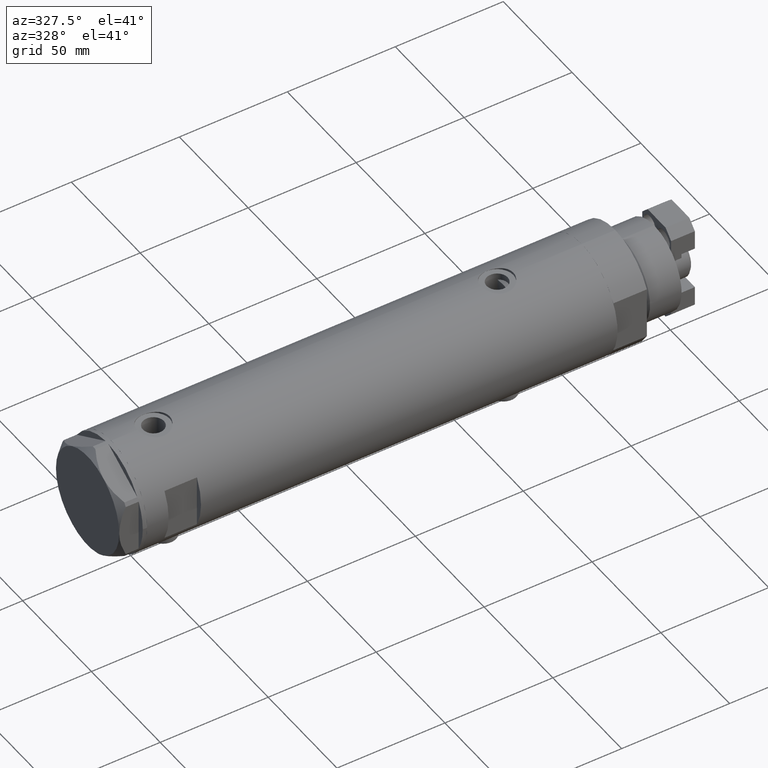
[diagram: clean part render]
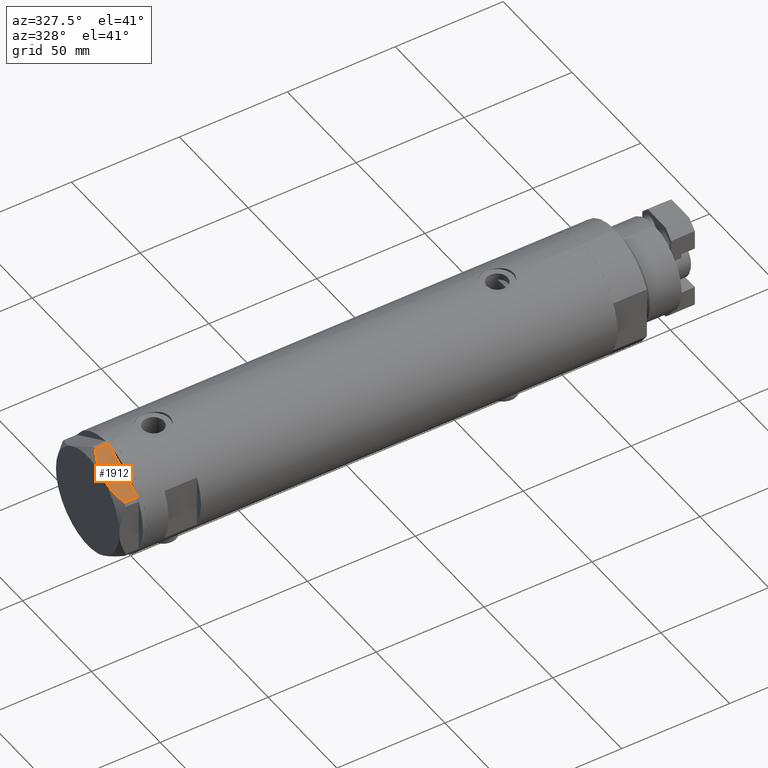
[diagram: same view with one face highlighted and labeled with its STEP entity id]
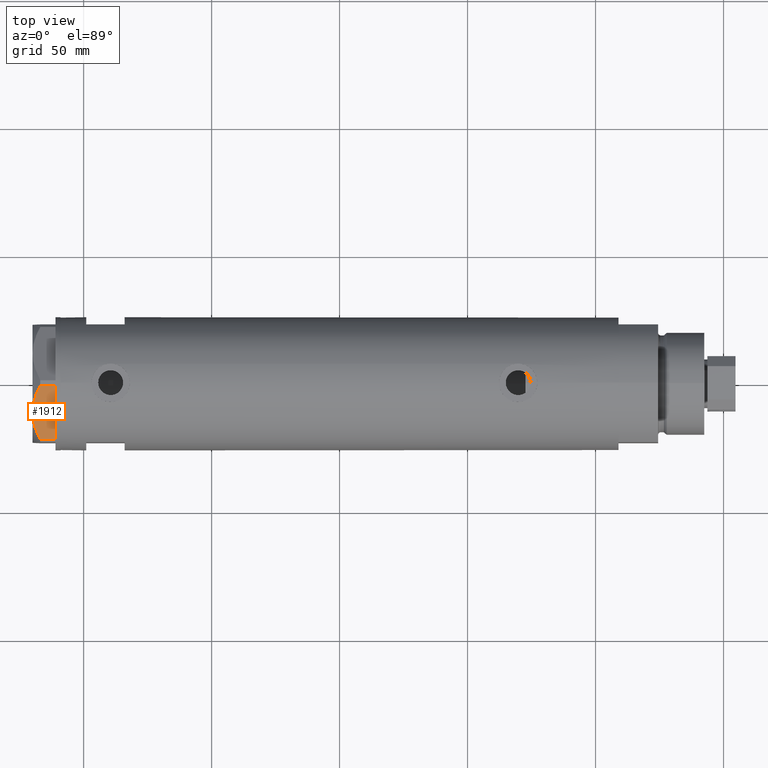
[diagram: same view with one face highlighted and labeled with its STEP entity id]
A machine part, auxiliary view. The second image highlights one B-rep face of the part: STEP entity #1912.
A second angle (top view) of the same face is appended — the face is thin or edge-on in the first view.
In plain terms, the highlighted planar face has unit normal (-0, 0.5, -0.866).
Its self-contained STEP definition (entity closure, byte-faithful):
#37 = CARTESIAN_POINT ( 'NONE',  ( -13.34348161667001698, -18.85424967941148822, 8.907842277728438063 ) ) ;
#99 = LINE ( 'NONE', #4350, #3338 ) ;
#107 = ORIENTED_EDGE ( 'NONE', *, *, #3327, .T. ) ;
#142 = EDGE_LOOP ( 'NONE', ( #1719, #4642, #1888, #4688, #107, #345, #2745 ) ) ;
#144 = CARTESIAN_POINT ( 'NONE',  ( -11.49999999999990585, -19.91858428704219364, 9.000000000000000000 ) ) ;
#345 = ORIENTED_EDGE ( 'NONE', *, *, #3665, .T. ) ;
#349 = DIRECTION ( 'NONE',  ( -0.8660254037844414832, 0.4999999999999950040, 0.000000000000000000 ) ) ;
#499 = CARTESIAN_POINT ( 'NONE',  ( -15.16323225988328538, -17.80361615569431777, 8.637313967156948991 ) ) ;
#587 = CARTESIAN_POINT ( 'NONE',  ( -2.640413878808339110, -25.03366871902064261, 6.844201024439214187 ) ) ;
#719 = CARTESIAN_POINT ( 'NONE',  ( -22.03005154776146313, -13.83905619136139364, 5.983800287807550689 ) ) ;
#746 = VERTEX_POINT ( 'NONE', #144 ) ;
#1063 = VERTEX_POINT ( 'NONE', #1950 ) ;
#1106 = CARTESIAN_POINT ( 'NONE',  ( -5.229981517799206614, -23.53858114556453529, 7.892128867758890998 ) ) ;
#1117 = VERTEX_POINT ( 'NONE', #3146 ) ;
#1193 = CARTESIAN_POINT ( 'NONE',  ( -22.99999999999990408, -13.27905619136147841, 0.000000000000000000 ) ) ;
#1417 = CARTESIAN_POINT ( 'NONE',  ( -20.37350567916426058, -14.79546339452094017, 6.877782426143456362 ) ) ;
#1538 = CARTESIAN_POINT ( 'NONE',  ( -9.678244919010385416, -20.97037507344893115, 9.000000000000088818 ) ) ;
#1565 = LINE ( 'NONE', #4999, #2662 ) ;
#1585 = DIRECTION ( 'NONE',  ( 0.8660254037844415942, -0.4999999999999950595, 0.000000000000000000 ) ) ;
#1587 = VERTEX_POINT ( 'NONE', #3644 ) ;
#1610 = CARTESIAN_POINT ( 'NONE',  ( -22.03005154776146313, -13.83905619136139364, 5.983800287807550689 ) ) ;
#1719 = ORIENTED_EDGE ( 'NONE', *, *, #2918, .F. ) ;
#1741 = CARTESIAN_POINT ( 'NONE',  ( -22.99999999999990408, -13.27905619136147841, 9.000000000000000000 ) ) ;
#1888 = ORIENTED_EDGE ( 'NONE', *, *, #5399, .T. ) ;
#1912 = ADVANCED_FACE ( 'NONE', ( #3001 ), #4650, .F. ) ;
#1950 = CARTESIAN_POINT ( 'NONE',  ( -0.9699484522383943208, -25.99811238272274494, 0.000000000000000000 ) ) ;
#2028 = CARTESIAN_POINT ( 'NONE',  ( -0.9699484522404678843, -25.99811238272155123, 5.983800287808756835 ) ) ;
#2311 = CARTESIAN_POINT ( 'NONE',  ( -11.49999999999990585, -19.91858428704219364, 9.000000000000000000 ) ) ;
#2662 = VECTOR ( 'NONE', #2855, 1000.000000000000000 ) ;
#2724 = CARTESIAN_POINT ( 'NONE',  ( -13.80210138309694301, -18.58946543380922378, 8.852712638955804181 ) ) ;
#2729 = CARTESIAN_POINT ( 'NONE',  ( -3.925137811031424562, -24.29193301091729396, 7.397272853992039821 ) ) ;
#2745 = ORIENTED_EDGE ( 'NONE', *, *, #4668, .F. ) ;
#2837 = CARTESIAN_POINT ( 'NONE',  ( -4.357207709417335373, -24.04247733877546267, 7.570552255230290406 ) ) ;
#2855 = DIRECTION ( 'NONE',  ( 0.000000000000000000, 0.000000000000000000, 1.000000000000000000 ) ) ;
#2918 = EDGE_CURVE ( 'NONE', #3255, #746, #3997, .T. ) ;
#3001 = FACE_OUTER_BOUND ( 'NONE', #142, .T. ) ;
#3146 = CARTESIAN_POINT ( 'NONE',  ( -0.9999999999997406519, -25.98076211353317433, 0.000000000000000000 ) ) ;
#3255 = VERTEX_POINT ( 'NONE', #1610 ) ;
#3268 = CARTESIAN_POINT ( 'NONE',  ( -7.884645426990268824, -22.00591022298511490, 8.707651728477127762 ) ) ;
#3317 = CARTESIAN_POINT ( 'NONE',  ( -0.9699484522404678843, -25.99811238272155123, 5.983800287808756835 ) ) ;
#3327 = EDGE_CURVE ( 'NONE', #1117, #1063, #3388, .T. ) ;
#3338 = VECTOR ( 'NONE', #4796, 1000.000000000000000 ) ;
#3369 = B_SPLINE_CURVE_WITH_KNOTS ( 'NONE', 3,
 ( #5415, #1538, #3268, #4980, #1106, #2837, #2729, #587, #5333, #3317 ),
 .UNSPECIFIED., .F., .F.,
 ( 4, 2, 2, 2, 4 ),
 ( 0.01376519981810312397, 0.01998941321701459134, 0.02154546656674245428, 0.02310151991647032069, 0.02621362661592604310 ),
 .UNSPECIFIED. ) ;
#3379 = DIRECTION ( 'NONE',  ( -0.000000000000000000, 0.000000000000000000, -1.000000000000000000 ) ) ;
#3388 = LINE ( 'NONE', #1193, #4554 ) ;
#3480 = CARTESIAN_POINT ( 'NONE',  ( -16.05322244309625290, -17.28978008384019915, 8.426899937603781865 ) ) ;
#3644 = CARTESIAN_POINT ( 'NONE',  ( -22.03005154776132102, -13.83905619136147536, 0.000000000000000000 ) ) ;
#3665 = EDGE_CURVE ( 'NONE', #1063, #4959, #1565, .T. ) ;
#3997 = B_SPLINE_CURVE_WITH_KNOTS ( 'NONE', 3,
 ( #719, #1417, #4866, #3480, #499, #2724, #37, #4371, #4451, #2311 ),
 .UNSPECIFIED., .F., .F.,
 ( 4, 2, 2, 2, 4 ),
 ( 0.001228959670438514989, 0.007497079744270818830, 0.01063113978118697227, 0.01219816979964504812, 0.01376519981810312397 ),
 .UNSPECIFIED. ) ;
#4052 = EDGE_CURVE ( 'NONE', #4310, #1117, #4191, .T. ) ;
#4191 = LINE ( 'NONE', #5581, #5317 ) ;
#4310 = VERTEX_POINT ( 'NONE', #5374 ) ;
#4350 = CARTESIAN_POINT ( 'NONE',  ( -22.99999999999990408, -13.27905619136147841, 0.000000000000000000 ) ) ;
#4371 = CARTESIAN_POINT ( 'NONE',  ( -12.41906678023023325, -19.38796083407287085, 8.981686407609506873 ) ) ;
#4451 = CARTESIAN_POINT ( 'NONE',  ( -11.95865151389046588, -19.65378171203314395, 9.000000000000095923 ) ) ;
#4554 = VECTOR ( 'NONE', #5128, 1000.000000000000000 ) ;
#4642 = ORIENTED_EDGE ( 'NONE', *, *, #4675, .T. ) ;
#4650 = PLANE ( 'NONE',  #5440 ) ;
#4668 = EDGE_CURVE ( 'NONE', #746, #4959, #3369, .T. ) ;
#4675 = EDGE_CURVE ( 'NONE', #3255, #1587, #5469, .T. ) ;
#4688 = ORIENTED_EDGE ( 'NONE', *, *, #4052, .T. ) ;
#4737 = DIRECTION ( 'NONE',  ( 0.4999999999999950595, 0.8660254037844415942, -0.000000000000000000 ) ) ;
#4796 = DIRECTION ( 'NONE',  ( 0.8660254037844415942, -0.4999999999999950595, 0.000000000000000000 ) ) ;
#4866 = CARTESIAN_POINT ( 'NONE',  ( -18.67981377008999644, -15.77331687414923778, 7.629374868826104716 ) ) ;
#4959 = VERTEX_POINT ( 'NONE', #2028 ) ;
#4980 = CARTESIAN_POINT ( 'NONE',  ( -5.671686373603866294, -23.28356272816335348, 8.040681765829727823 ) ) ;
#4999 = CARTESIAN_POINT ( 'NONE',  ( -0.9699484522383977625, -25.99811238272274494, 9.000000000000000000 ) ) ;
#5028 = CARTESIAN_POINT ( 'NONE',  ( -22.03005154776132102, -13.83905619136147536, 9.000000000000000000 ) ) ;
#5128 = DIRECTION ( 'NONE',  ( 0.8660254037844415942, -0.4999999999999950595, 0.000000000000000000 ) ) ;
#5135 = VECTOR ( 'NONE', #3379, 1000.000000000000000 ) ;
#5317 = VECTOR ( 'NONE', #1585, 1000.000000000000000 ) ;
#5333 = CARTESIAN_POINT ( 'NONE',  ( -1.799196345398571983, -25.51934588838179607, 6.431317509510369845 ) ) ;
#5374 = CARTESIAN_POINT ( 'NONE',  ( -21.99999999999998224, -13.85640646055105485, 0.000000000000000000 ) ) ;
#5399 = EDGE_CURVE ( 'NONE', #1587, #4310, #99, .T. ) ;
#5415 = CARTESIAN_POINT ( 'NONE',  ( -11.49999999999990585, -19.91858428704219364, 9.000000000000000000 ) ) ;
#5440 = AXIS2_PLACEMENT_3D ( 'NONE', #1741, #4737, #349 ) ;
#5469 = LINE ( 'NONE', #5028, #5135 ) ;
#5581 = CARTESIAN_POINT ( 'NONE',  ( -22.99999999999990408, -13.27905619136147841, 0.000000000000000000 ) ) ;